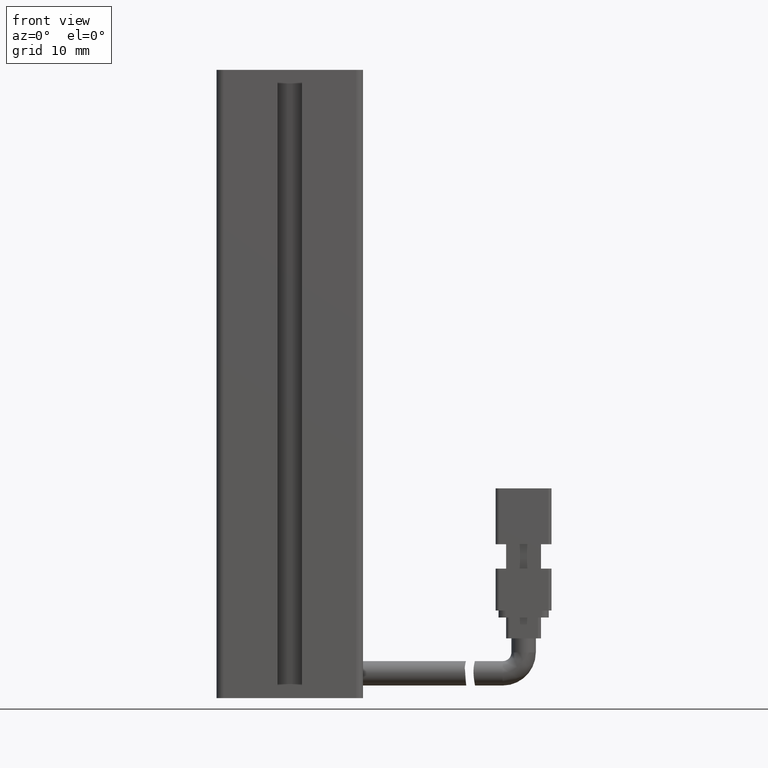
[diagram: clean part render]
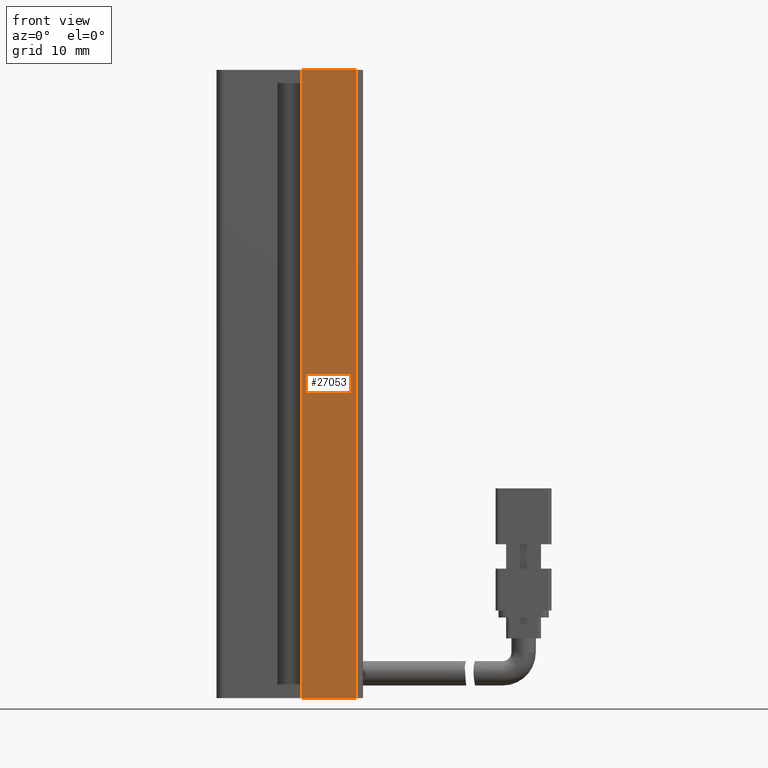
[diagram: same view with one face highlighted and labeled with its STEP entity id]
A machine part, front view. The second image highlights one B-rep face of the part: STEP entity #27053.
In plain terms, the highlighted planar face has unit normal (0, 1, 0).
Its self-contained STEP definition (entity closure, byte-faithful):
#13 = VECTOR ( 'NONE', #9319, 1000.000000000000000 ) ;
#177 = VECTOR ( 'NONE', #17911, 1000.000000000000000 ) ;
#828 = CARTESIAN_POINT ( 'NONE',  ( 40.92537974683542500, 10.99073232304837000, -70.00000000000000000 ) ) ;
#2620 = DIRECTION ( 'NONE',  ( 0.0000000000000000000, -0.0000000000000000000, 1.000000000000000000 ) ) ;
#3235 = DIRECTION ( 'NONE',  ( -0.0000000000000000000, 0.0000000000000000000, -1.000000000000000000 ) ) ;
#4305 = VECTOR ( 'NONE', #2620, 1000.000000000000000 ) ;
#4385 = EDGE_CURVE ( 'NONE', #31087, #6876, #27409, .T. ) ;
#5641 = DIRECTION ( 'NONE',  ( 0.0000000000000000000, -0.0000000000000000000, 1.000000000000000000 ) ) ;
#6043 = ORIENTED_EDGE ( 'NONE', *, *, #14209, .T. ) ;
#6876 = VERTEX_POINT ( 'NONE', #13083 ) ;
#9319 = DIRECTION ( 'NONE',  ( 1.000000000000000000, 0.0000000000000000000, 0.0000000000000000000 ) ) ;
#9563 = CARTESIAN_POINT ( 'NONE',  ( 42.67537974683542500, 10.99073232304837000, -70.00000000000000000 ) ) ;
#11243 = LINE ( 'NONE', #28000, #31852 ) ;
#11394 = CARTESIAN_POINT ( 'NONE',  ( 40.92537974683542500, 10.99073232304837000, -160.0000000000000000 ) ) ;
#13083 = CARTESIAN_POINT ( 'NONE',  ( 50.42537974683541800, 10.99073232304837000, -70.00000000000000000 ) ) ;
#14209 = EDGE_CURVE ( 'NONE', #23266, #31095, #17896, .T. ) ;
#15187 = ORIENTED_EDGE ( 'NONE', *, *, #16687, .F. ) ;
#16687 = EDGE_CURVE ( 'NONE', #6876, #31095, #11243, .T. ) ;
#17430 = FACE_OUTER_BOUND ( 'NONE', #23262, .T. ) ;
#17896 = LINE ( 'NONE', #11394, #13 ) ;
#17911 = DIRECTION ( 'NONE',  ( 1.000000000000000000, 0.0000000000000000000, 0.0000000000000000000 ) ) ;
#20352 = ORIENTED_EDGE ( 'NONE', *, *, #30649, .F. ) ;
#20450 = PLANE ( 'NONE',  #23509 ) ;
#22343 = CARTESIAN_POINT ( 'NONE',  ( 42.67537974683542500, 10.99073232304837000, -70.00000000000000000 ) ) ;
#22464 = CARTESIAN_POINT ( 'NONE',  ( 40.92537974683542500, 10.99073232304837000, -70.00000000000000000 ) ) ;
#22598 = ORIENTED_EDGE ( 'NONE', *, *, #4385, .F. ) ;
#23262 = EDGE_LOOP ( 'NONE', ( #15187, #22598, #20352, #6043 ) ) ;
#23266 = VERTEX_POINT ( 'NONE', #31908 ) ;
#23509 = AXIS2_PLACEMENT_3D ( 'NONE', #828, #25497, #5641 ) ;
#24503 = CARTESIAN_POINT ( 'NONE',  ( 50.42537974683541800, 10.99073232304837000, -160.0000000000000000 ) ) ;
#24908 = LINE ( 'NONE', #22343, #4305 ) ;
#25497 = DIRECTION ( 'NONE',  ( 0.0000000000000000000, 1.000000000000000000, 0.0000000000000000000 ) ) ;
#27053 = ADVANCED_FACE ( 'NONE', ( #17430 ), #20450, .F. ) ;
#27409 = LINE ( 'NONE', #22464, #177 ) ;
#28000 = CARTESIAN_POINT ( 'NONE',  ( 50.42537974683541800, 10.99073232304837000, -70.00000000000000000 ) ) ;
#30649 = EDGE_CURVE ( 'NONE', #23266, #31087, #24908, .T. ) ;
#31087 = VERTEX_POINT ( 'NONE', #9563 ) ;
#31095 = VERTEX_POINT ( 'NONE', #24503 ) ;
#31852 = VECTOR ( 'NONE', #3235, 1000.000000000000000 ) ;
#31908 = CARTESIAN_POINT ( 'NONE',  ( 42.67537974683542500, 10.99073232304837000, -160.0000000000000000 ) ) ;